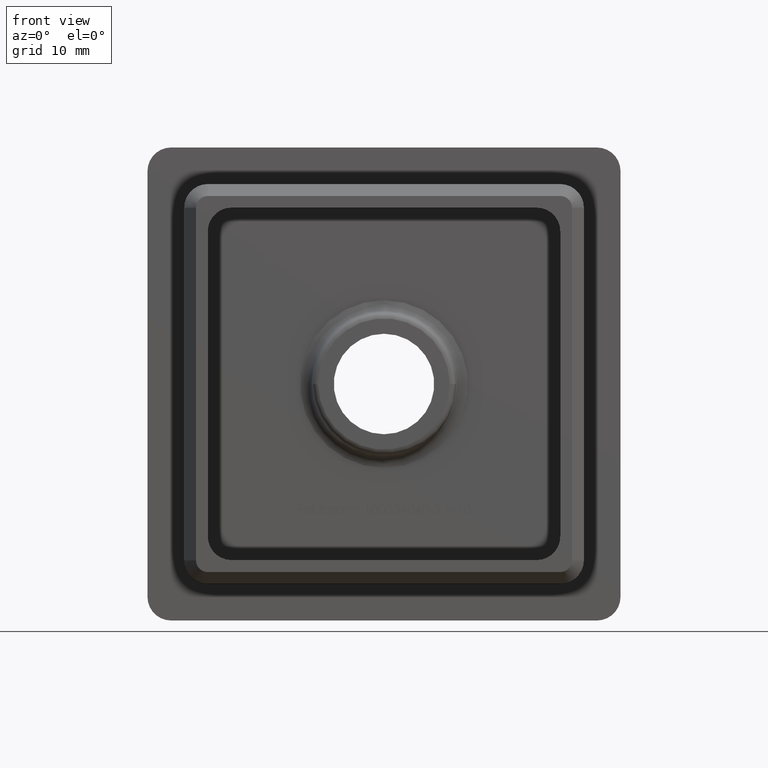
[diagram: clean part render]
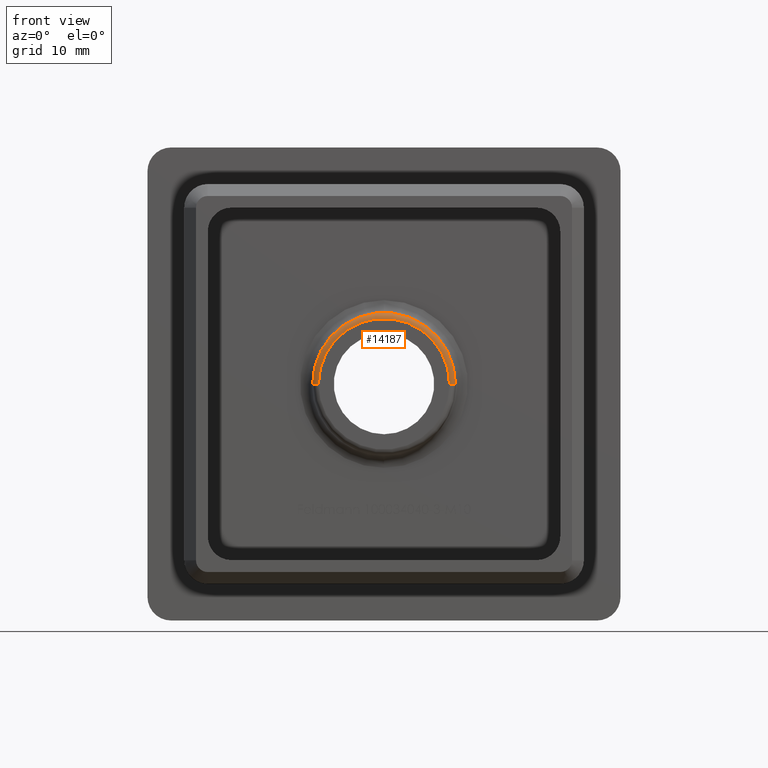
[diagram: same view with one face highlighted and labeled with its STEP entity id]
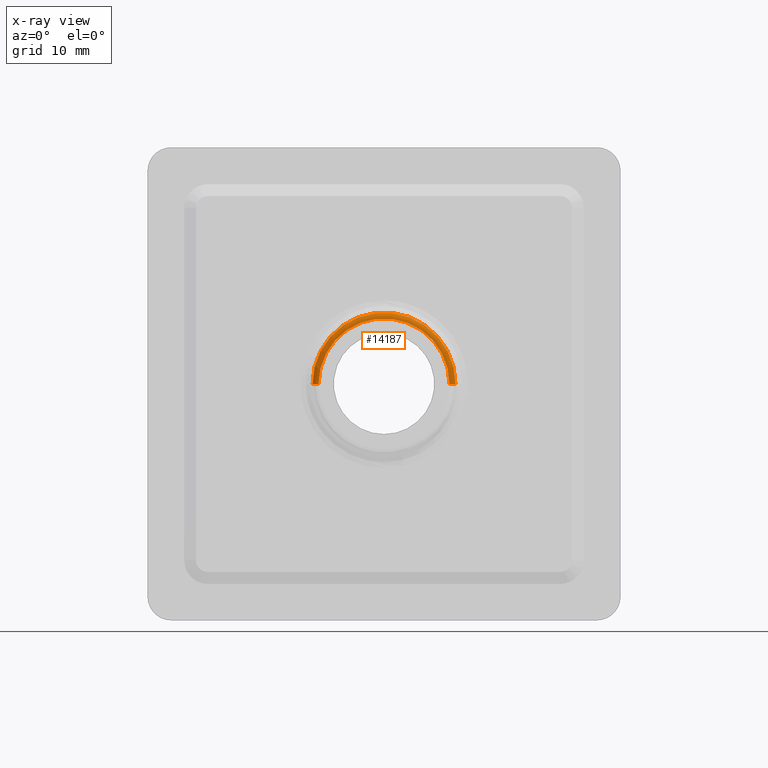
[diagram: x-ray of the same camera — body ghosted, the highlighted face saturated]
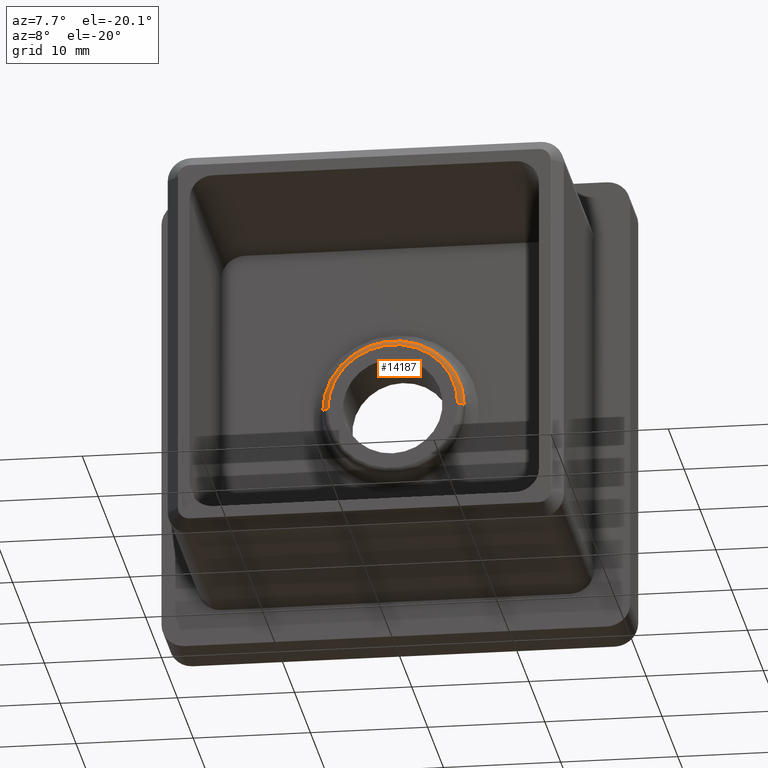
[diagram: same view with one face highlighted and labeled with its STEP entity id]
A machine part, front view. The second image highlights one B-rep face of the part: STEP entity #14187.
The next image is the same camera in x-ray: the body ghosted, the highlighted face saturated — about 0% of this face is hidden behind the body in this view.
A second angle (auxiliary view) of the same face is appended — the face is thin or edge-on in the first view.
In plain terms, the highlighted toroidal blend (fillet) surface has major radius 5.5418 mm and minor (blend) radius 0.5 mm.
Its self-contained STEP definition (entity closure, byte-faithful):
#277 = DIRECTION ( 'NONE',  ( 1.224646799147353500E-016, -1.000000000000000000, 0.0000000000000000000 ) ) ;
#547 = AXIS2_PLACEMENT_3D ( 'NONE', #11144, #277, #15388 ) ;
#729 = DIRECTION ( 'NONE',  ( -1.000000000000000000, 0.0000000000000000000, 0.0000000000000000000 ) ) ;
#1038 = CARTESIAN_POINT ( 'NONE',  ( 1.890337699412631400E-016, -1.543577871373824600, 0.0000000000000000000 ) ) ;
#2379 = EDGE_CURVE ( 'NONE', #9390, #8949, #4736, .T. ) ;
#3213 = CARTESIAN_POINT ( 'NONE',  ( -5.541834412991285300, -2.000000000000001300, 0.0000000000000000000 ) ) ;
#3325 = CARTESIAN_POINT ( 'NONE',  ( -6.039931762037158000, -1.543577871373825300, 0.0000000000000000000 ) ) ;
#3755 = VERTEX_POINT ( 'NONE', #3325 ) ;
#4262 = CIRCLE ( 'NONE', #547, 5.541834412991285300 ) ;
#4736 = CIRCLE ( 'NONE', #17634, 0.4999999999999995600 ) ;
#4876 = EDGE_CURVE ( 'NONE', #9390, #17363, #4262, .T. ) ;
#4937 = CIRCLE ( 'NONE', #16855, 0.4999999999999995600 ) ;
#5756 = EDGE_CURVE ( 'NONE', #3755, #8949, #7103, .T. ) ;
#6129 = CARTESIAN_POINT ( 'NONE',  ( 5.541834412991285300, -1.999999999999999600, 7.091786437360833800E-016 ) ) ;
#6220 = DIRECTION ( 'NONE',  ( 0.0000000000000000000, -0.0000000000000000000, -1.000000000000000000 ) ) ;
#6326 = AXIS2_PLACEMENT_3D ( 'NONE', #6662, #15121, #12278 ) ;
#6451 = CARTESIAN_POINT ( 'NONE',  ( 5.541834412991285300, -1.499999999999999800, 6.786789775274429000E-016 ) ) ;
#6579 = EDGE_CURVE ( 'NONE', #17363, #3755, #4937, .T. ) ;
#6662 = CARTESIAN_POINT ( 'NONE',  ( 1.836970198721030900E-016, -1.500000000000000400, 0.0000000000000000000 ) ) ;
#7103 = CIRCLE ( 'NONE', #14493, 6.039931762037158000 ) ;
#7601 = FACE_OUTER_BOUND ( 'NONE', #14710, .T. ) ;
#7717 = DIRECTION ( 'NONE',  ( 1.000000000000000000, 1.077034193631177400E-016, 0.0000000000000000000 ) ) ;
#7828 = DIRECTION ( 'NONE',  ( -1.224646799147353500E-016, 1.000000000000000000, -0.0000000000000000000 ) ) ;
#8949 = VERTEX_POINT ( 'NONE', #10620 ) ;
#9056 = CARTESIAN_POINT ( 'NONE',  ( -5.541834412991285300, -1.500000000000001100, 0.0000000000000000000 ) ) ;
#9390 = VERTEX_POINT ( 'NONE', #6129 ) ;
#10620 = CARTESIAN_POINT ( 'NONE',  ( 6.039931762037158000, -1.543577871373824000, 7.430572354351253200E-016 ) ) ;
#11144 = CARTESIAN_POINT ( 'NONE',  ( 2.449293598294707900E-016, -2.000000000000000400, 0.0000000000000000000 ) ) ;
#12142 = TOROIDAL_SURFACE ( 'NONE', #6326, 5.541834412991285300, 0.5000000000000000000 ) ;
#12278 = DIRECTION ( 'NONE',  ( -1.000000000000000000, -1.224646799147353500E-016, 0.0000000000000000000 ) ) ;
#12401 = ORIENTED_EDGE ( 'NONE', *, *, #5756, .F. ) ;
#14187 = ADVANCED_FACE ( 'NONE', ( #7601 ), #12142, .T. ) ;
#14347 = ORIENTED_EDGE ( 'NONE', *, *, #2379, .T. ) ;
#14493 = AXIS2_PLACEMENT_3D ( 'NONE', #1038, #7828, #7717 ) ;
#14557 = DIRECTION ( 'NONE',  ( 1.000000000000000000, 0.0000000000000000000, 1.224646799147353500E-016 ) ) ;
#14710 = EDGE_LOOP ( 'NONE', ( #16118, #14347, #12401, #15138 ) ) ;
#15121 = DIRECTION ( 'NONE',  ( -1.224646799147353500E-016, 1.000000000000000000, -0.0000000000000000000 ) ) ;
#15138 = ORIENTED_EDGE ( 'NONE', *, *, #6579, .F. ) ;
#15388 = DIRECTION ( 'NONE',  ( -1.000000000000000000, -1.565116662372870400E-016, 0.0000000000000000000 ) ) ;
#15966 = DIRECTION ( 'NONE',  ( -1.224646799147353200E-016, -1.499759782661857900E-032, 1.000000000000000000 ) ) ;
#16118 = ORIENTED_EDGE ( 'NONE', *, *, #4876, .F. ) ;
#16855 = AXIS2_PLACEMENT_3D ( 'NONE', #9056, #6220, #729 ) ;
#17363 = VERTEX_POINT ( 'NONE', #3213 ) ;
#17634 = AXIS2_PLACEMENT_3D ( 'NONE', #6451, #15966, #14557 ) ;